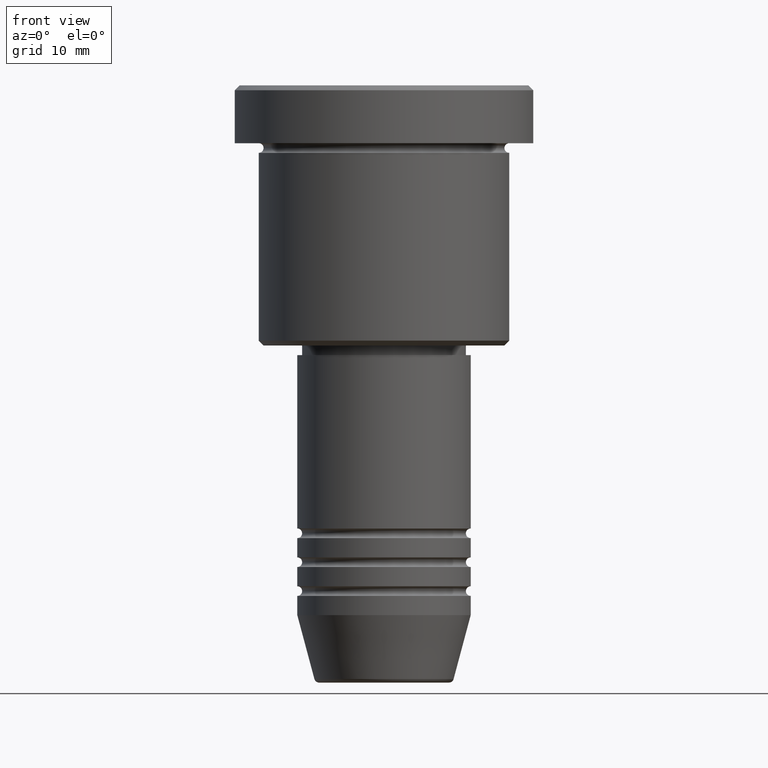
[diagram: clean part render]
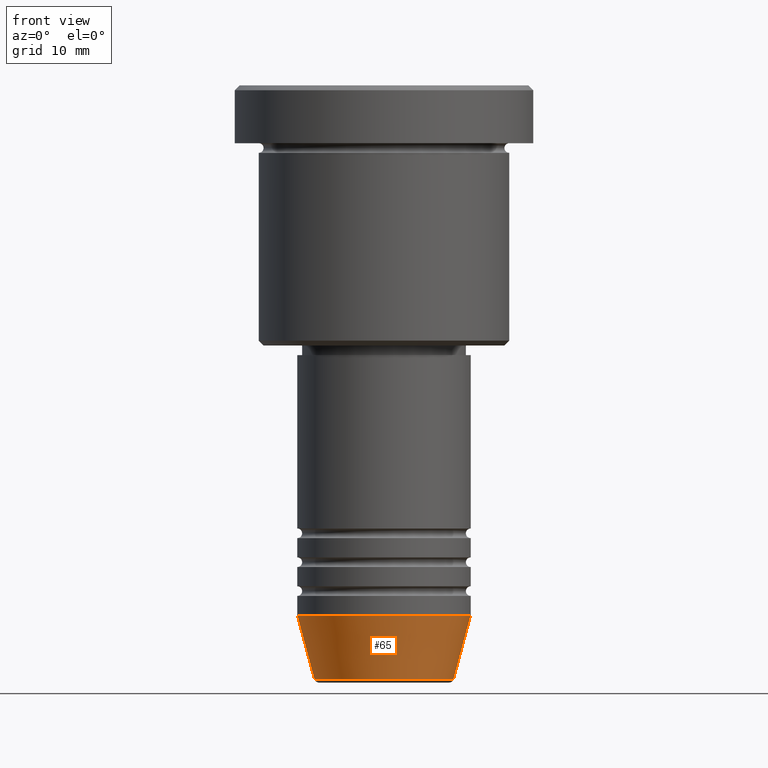
[diagram: same view with one face highlighted and labeled with its STEP entity id]
A machine part, front view. The second image highlights one B-rep face of the part: STEP entity #65.
In plain terms, the highlighted conical surface has half-angle 15 deg.
Its self-contained STEP definition (entity closure, byte-faithful):
#46 = DIRECTION ( 'NONE',  ( 0.2588190451025213501, 0.000000000000000000, 0.9659258262890680902 ) ) ;
#53 = VERTEX_POINT ( 'NONE', #465 ) ;
#65 = ADVANCED_FACE ( 'NONE', ( #1004 ), #1045, .T. ) ;
#135 = CARTESIAN_POINT ( 'NONE',  ( 9.000000000000000000, 0.000000000000000000, -55.00000000000000000 ) ) ;
#144 = DIRECTION ( 'NONE',  ( 1.000000000000000000, 0.000000000000000000, 0.000000000000000000 ) ) ;
#154 = VECTOR ( 'NONE', #1148, 1000.000000000000000 ) ;
#159 = DIRECTION ( 'NONE',  ( -0.000000000000000000, -0.000000000000000000, 1.000000000000000000 ) ) ;
#169 = CARTESIAN_POINT ( 'NONE',  ( 0.000000000000000000, 0.000000000000000000, -55.00000000000000000 ) ) ;
#243 = CIRCLE ( 'NONE', #1138, 9.000000000000000000 ) ;
#252 = DIRECTION ( 'NONE',  ( -0.000000000000000000, -0.000000000000000000, 1.000000000000000000 ) ) ;
#278 = CARTESIAN_POINT ( 'NONE',  ( 0.000000000000000000, 0.000000000000000000, -55.00000000000000000 ) ) ;
#364 = AXIS2_PLACEMENT_3D ( 'NONE', #951, #159, #144 ) ;
#397 = CARTESIAN_POINT ( 'NONE',  ( -7.223655072137191269, 9.934123627281767082E-16, -61.62940952255126348 ) ) ;
#416 = EDGE_CURVE ( 'NONE', #958, #651, #868, .T. ) ;
#458 = ORIENTED_EDGE ( 'NONE', *, *, #1144, .F. ) ;
#465 = CARTESIAN_POINT ( 'NONE',  ( -9.000000000000000000, 1.102182119232617714E-15, -55.00000000000000000 ) ) ;
#508 = CARTESIAN_POINT ( 'NONE',  ( -9.000000000000000000, 1.102182119232617714E-15, -55.00000000000000000 ) ) ;
#511 = EDGE_LOOP ( 'NONE', ( #458, #1101, #707, #995 ) ) ;
#651 = VERTEX_POINT ( 'NONE', #1063 ) ;
#707 = ORIENTED_EDGE ( 'NONE', *, *, #910, .T. ) ;
#723 = DIRECTION ( 'NONE',  ( 1.000000000000000000, 0.000000000000000000, 0.000000000000000000 ) ) ;
#751 = EDGE_CURVE ( 'NONE', #53, #1130, #243, .T. ) ;
#779 = DIRECTION ( 'NONE',  ( 1.000000000000000000, 0.000000000000000000, 0.000000000000000000 ) ) ;
#868 = CIRCLE ( 'NONE', #364, 7.223655072137190380 ) ;
#910 = EDGE_CURVE ( 'NONE', #651, #1130, #1111, .T. ) ;
#951 = CARTESIAN_POINT ( 'NONE',  ( 0.000000000000000000, 0.000000000000000000, -61.62940952255126348 ) ) ;
#956 = AXIS2_PLACEMENT_3D ( 'NONE', #278, #1085, #723 ) ;
#958 = VERTEX_POINT ( 'NONE', #397 ) ;
#995 = ORIENTED_EDGE ( 'NONE', *, *, #751, .F. ) ;
#1004 = FACE_OUTER_BOUND ( 'NONE', #511, .T. ) ;
#1028 = VECTOR ( 'NONE', #46, 1000.000000000000000 ) ;
#1045 = CONICAL_SURFACE ( 'NONE', #956, 9.000000000000000000, 0.2617993877991500740 ) ;
#1051 = CARTESIAN_POINT ( 'NONE',  ( 9.000000000000000000, 0.000000000000000000, -55.00000000000000000 ) ) ;
#1057 = LINE ( 'NONE', #508, #154 ) ;
#1063 = CARTESIAN_POINT ( 'NONE',  ( 7.223655072137190380, 0.000000000000000000, -61.62940952255126348 ) ) ;
#1085 = DIRECTION ( 'NONE',  ( -0.000000000000000000, -0.000000000000000000, 1.000000000000000000 ) ) ;
#1101 = ORIENTED_EDGE ( 'NONE', *, *, #416, .T. ) ;
#1111 = LINE ( 'NONE', #135, #1028 ) ;
#1130 = VERTEX_POINT ( 'NONE', #1051 ) ;
#1138 = AXIS2_PLACEMENT_3D ( 'NONE', #169, #252, #779 ) ;
#1144 = EDGE_CURVE ( 'NONE', #958, #53, #1057, .T. ) ;
#1148 = DIRECTION ( 'NONE',  ( -0.2588190451025213501, 3.169619151431772337E-17, 0.9659258262890680902 ) ) ;